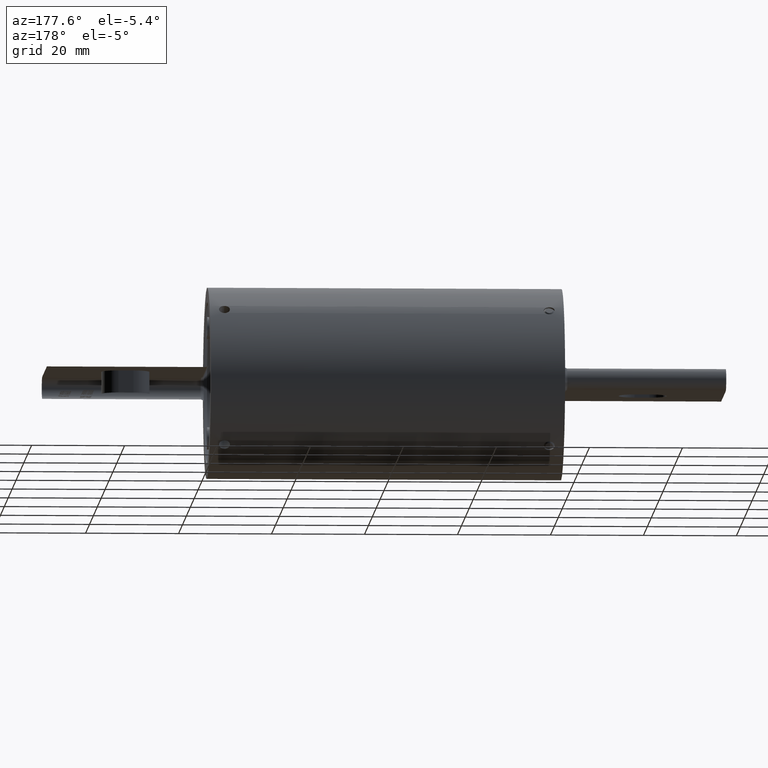
[diagram: clean part render]
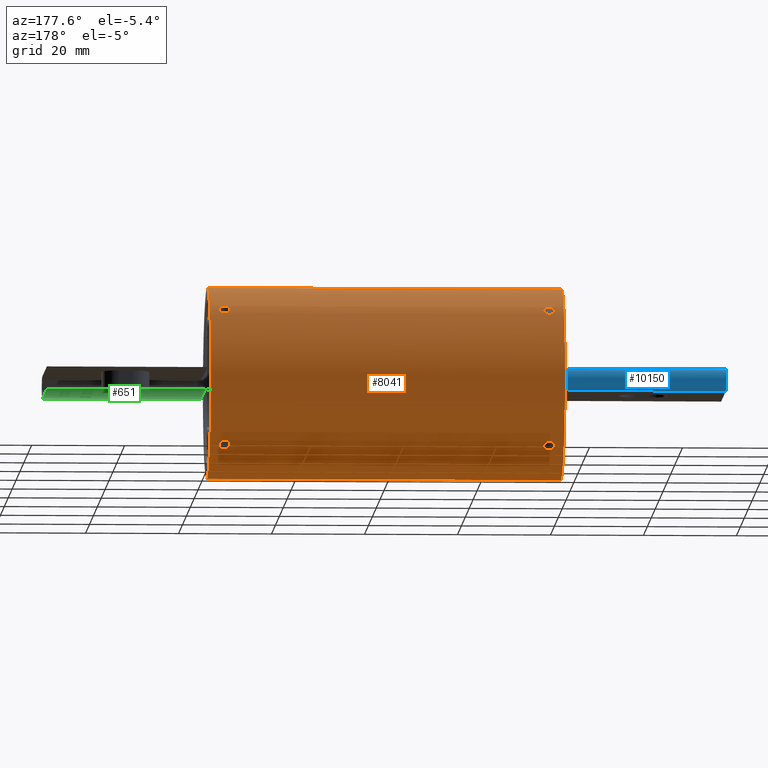
[diagram: same view with three faces highlighted in distinct colors, each labeled with its STEP entity id]
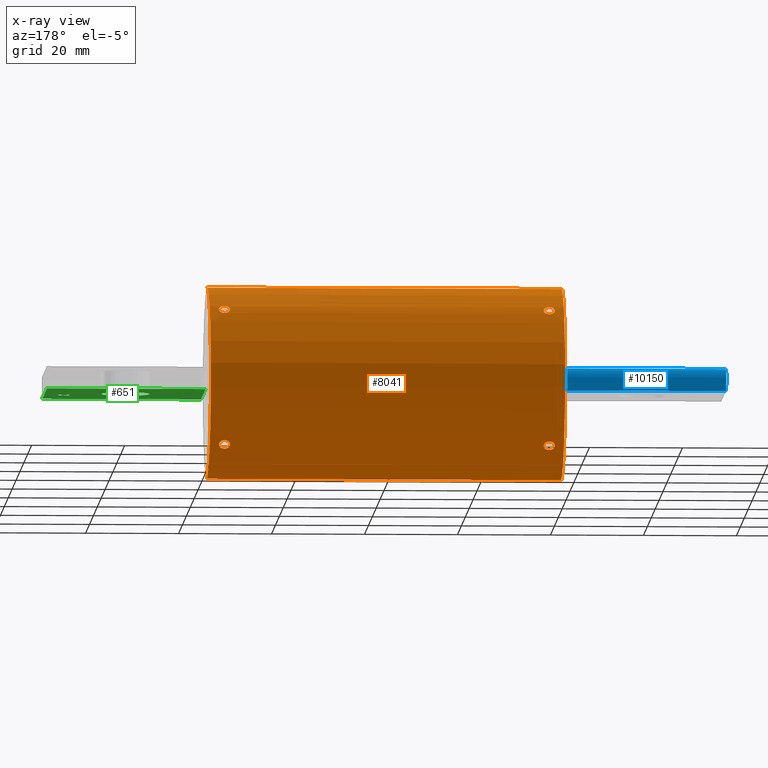
[diagram: x-ray of the same camera — body ghosted, the three highlighted faces saturated]
A machine part, auxiliary view with three faces highlighted in distinct colors.
The next image is the same camera in x-ray (body ghosted, the three faces saturated) — at least one of them is partly hidden behind the body in this view.
Their STEP definitions:

[orange] entity #8041 — the highlighted cylindrical surface (partial cylindrical patch) has radius 20.6375 mm, axis along (-1, -0, -0).
#150 = VERTEX_POINT ( 'NONE', #5687 ) ;
#240 = CARTESIAN_POINT ( 'NONE',  ( 1.334038366879631600, 0.5909793496865345400, -0.5576122985766067700 ) ) ;
#294 = VERTEX_POINT ( 'NONE', #4615 ) ;
#295 = DIRECTION ( 'NONE',  ( -1.000000000000000000, -0.0000000000000000000, -0.0000000000000000000 ) ) ;
#470 = VERTEX_POINT ( 'NONE', #3330 ) ;
#514 = CARTESIAN_POINT ( 'NONE',  ( 1.329332951784963700, 0.5658273840194194500, -0.5831190707390300200 ) ) ;
#623 = FACE_OUTER_BOUND ( 'NONE', #8137, .T. ) ;
#695 = CARTESIAN_POINT ( 'NONE',  ( 1.334023949155005200, 0.5576238351625177900, -0.5909688127341871100 ) ) ;
#725 = EDGE_LOOP ( 'NONE', ( #1001, #10065 ) ) ;
#731 = ORIENTED_EDGE ( 'NONE', *, *, #7513, .T. ) ;
#779 = B_SPLINE_CURVE_WITH_KNOTS ( 'NONE', 3,
 ( #5193, #5207, #5158, #5122, #5108, #5098, #5088, #5077, #5068, #5062, #5049, #5037, #5031, #5002, #4995, #4985, #4975, #4968 ),
 .UNSPECIFIED., .F., .F.,
 ( 4, 2, 2, 2, 2, 2, 2, 2, 4 ),
 ( 0.003722425619324115100, 0.004187729220031939100, 0.004653032820739764000, 0.005118336421447588000, 0.005583640022155412000, 0.006048943622863236900, 0.006514247223571060900, 0.006979550824278885800, 0.007444854424986709800 ),
 .UNSPECIFIED. ) ;
#801 = CARTESIAN_POINT ( 'NONE',  ( -1.375000000000000200, 0.5404217084749295400, -0.6067129692111735700 ) ) ;
#811 = EDGE_CURVE ( 'NONE', #294, #2682, #8096, .T. ) ;
#1001 = ORIENTED_EDGE ( 'NONE', *, *, #5377, .T. ) ;
#1039 = CARTESIAN_POINT ( 'NONE',  ( -1.412469314699299900, 0.5945509083305838800, -0.5537907447179437600 ) ) ;
#1053 = CARTESIAN_POINT ( 'NONE',  ( -1.421870789102742900, 0.5701775572551628400, 0.5788706186091341400 ) ) ;
#1182 = CARTESIAN_POINT ( 'NONE',  ( -1.500000000000000200, 9.950255243072245600E-017, -0.8125000000000000000 ) ) ;
#1293 = CARTESIAN_POINT ( 'NONE',  ( -1.403823156898221600, 0.6004152677518652700, -0.5474271438122460000 ) ) ;
#1322 = CARTESIAN_POINT ( 'NONE',  ( 1.375000000000000200, 0.6067129692111680200, -0.5404217084749356500 ) ) ;
#1342 = CARTESIAN_POINT ( 'NONE',  ( -1.500000000000000200, 0.0000000000000000000, 0.8125000000000000000 ) ) ;
#1345 = AXIS2_PLACEMENT_3D ( 'NONE', #4089, #3831, #4234 ) ;
#1392 = CARTESIAN_POINT ( 'NONE',  ( 1.381194365323907200, 0.6067129692111680200, -0.5404217084749356500 ) ) ;
#1394 = ORIENTED_EDGE ( 'NONE', *, *, #3242, .T. ) ;
#1433 = CARTESIAN_POINT ( 'NONE',  ( 1.329361585817783400, 0.5831804503088605700, -0.5657637578153628100 ) ) ;
#1543 = CARTESIAN_POINT ( 'NONE',  ( 1.387284325218666000, 0.6059002631434174900, -0.5413378669100369400 ) ) ;
#1579 = CARTESIAN_POINT ( 'NONE',  ( 1.398640609744779000, 0.6027466088351868300, -0.5448470799826807800 ) ) ;
#1607 = AXIS2_PLACEMENT_3D ( 'NONE', #8175, #8156, #8148 ) ;
#1618 = CARTESIAN_POINT ( 'NONE',  ( 1.346202517740073400, 0.5474038556743835400, -0.6004368981637510100 ) ) ;
#1691 = CARTESIAN_POINT ( 'NONE',  ( 1.403797482259927300, 0.6004368981637456800, -0.5474038556743897600 ) ) ;
#1722 = CARTESIAN_POINT ( 'NONE',  ( 1.412541206956776000, 0.5944979079309633500, -0.5538480724435140800 ) ) ;
#1760 = CARTESIAN_POINT ( 'NONE',  ( 1.415976050844995000, 0.5909688127341815600, -0.5576238351625235600 ) ) ;
#1761 = CARTESIAN_POINT ( 'NONE',  ( -1.375000000000000200, 0.6067129692111716800, 0.5404217084749316500 ) ) ;
#1769 = CARTESIAN_POINT ( 'NONE',  ( -1.381194354719381500, 0.6067129692111696800, 0.5404217084749337600 ) ) ;
#1775 = CARTESIAN_POINT ( 'NONE',  ( -1.387284325218666000, 0.6059002631434214900, 0.5413378669100326100 ) ) ;
#1787 = CARTESIAN_POINT ( 'NONE',  ( -1.398640609744779200, 0.6027466088351906000, 0.5448470799826766700 ) ) ;
#1802 = CARTESIAN_POINT ( 'NONE',  ( -1.403797482259927100, 0.6004368981637492300, 0.5474038556743856500 ) ) ;
#1810 = CARTESIAN_POINT ( 'NONE',  ( -1.412541206956775300, 0.5944979079309673500, 0.5538480724435097500 ) ) ;
#1818 = CARTESIAN_POINT ( 'NONE',  ( -1.415976050844995000, 0.5909688127341852200, 0.5576238351625199000 ) ) ;
#1829 = CARTESIAN_POINT ( 'NONE',  ( -1.420667048215037400, 0.5831190707390281300, 0.5658273840194213400 ) ) ;
#1848 = CARTESIAN_POINT ( 'NONE',  ( 1.420667048215037600, 0.5831190707390239100, -0.5658273840194257800 ) ) ;
#1850 = CARTESIAN_POINT ( 'NONE',  ( -1.421879188784005000, 0.5788254297754418200, 0.5702234314123376700 ) ) ;
#1857 = CARTESIAN_POINT ( 'NONE',  ( 1.421879188784005400, 0.5788254297754379400, -0.5702234314123417700 ) ) ;
#1860 = CARTESIAN_POINT ( 'NONE',  ( -1.420638414182216400, 0.5657637578153609200, 0.5831804503088623400 ) ) ;
#1871 = CARTESIAN_POINT ( 'NONE',  ( -1.415961633120369300, 0.5576122985766047700, 0.5909793496865364300 ) ) ;
#1888 = CARTESIAN_POINT ( 'NONE',  ( 1.421870789102742900, 0.5701775572551585100, -0.5788706186091383500 ) ) ;
#1890 = CARTESIAN_POINT ( 'NONE',  ( -1.412469314699299900, 0.5537907447179417600, 0.5945509083305857700 ) ) ;
#1898 = CARTESIAN_POINT ( 'NONE',  ( -1.403823156898221600, 0.5474271438122438900, 0.6004152677518670400 ) ) ;
#1917 = CARTESIAN_POINT ( 'NONE',  ( 1.420638414182216400, 0.5657637578153568200, -0.5831804503088665600 ) ) ;
#1920 = CARTESIAN_POINT ( 'NONE',  ( -1.398624374755408800, 0.5448404738885940200, 0.6027525682444275800 ) ) ;
#1927 = CARTESIAN_POINT ( 'NONE',  ( -1.387272538377428000, 0.5413358178877972800, 0.6059020818450379100 ) ) ;
#1951 = CARTESIAN_POINT ( 'NONE',  ( 1.415961633120369300, 0.5576122985766005500, -0.5909793496865404200 ) ) ;
#1966 = CARTESIAN_POINT ( 'NONE',  ( -1.375000000000000200, 0.5404217084749337600, 0.6067129692111696800 ) ) ;
#1978 = EDGE_CURVE ( 'NONE', #470, #3978, #3614, .T. ) ;
#2020 = CARTESIAN_POINT ( 'NONE',  ( 1.412469314699299900, 0.5537907447179375400, -0.5945509083305898800 ) ) ;
#2057 = CARTESIAN_POINT ( 'NONE',  ( 1.403823156898221300, 0.5474271438122397800, -0.6004152677518708200 ) ) ;
#2060 = CARTESIAN_POINT ( 'NONE',  ( 1.375000000000000200, 0.6067129692111716800, 0.5404217084749316500 ) ) ;
#2093 = CARTESIAN_POINT ( 'NONE',  ( 1.398624374755407900, 0.5448404738885895800, -0.6027525682444315700 ) ) ;
#2097 = CARTESIAN_POINT ( 'NONE',  ( -1.375000000000000200, 0.6067129692111716800, 0.5404217084749316500 ) ) ;
#2108 = CARTESIAN_POINT ( 'NONE',  ( -1.421870789102742900, 0.5788706186091322500, -0.5701775572551647200 ) ) ;
#2131 = CARTESIAN_POINT ( 'NONE',  ( 1.387272538377427800, 0.5413358178877932800, -0.6059020818450415700 ) ) ;
#2177 = CARTESIAN_POINT ( 'NONE',  ( 1.368805645280619000, 0.6067129692111696800, 0.5404217084749337600 ) ) ;
#2241 = CARTESIAN_POINT ( 'NONE',  ( -1.381194360021630800, 0.5404217084749336500, 0.6067129692111695700 ) ) ;
#2252 = CARTESIAN_POINT ( 'NONE',  ( 1.362715674781334700, 0.6059002631434214900, 0.5413378669100326100 ) ) ;
#2284 = CARTESIAN_POINT ( 'NONE',  ( 1.351359390255221400, 0.6027466088351906000, 0.5448470799826766700 ) ) ;
#2305 = CARTESIAN_POINT ( 'NONE',  ( 1.375000000000000200, 0.5404217084749295400, -0.6067129692111735700 ) ) ;
#2333 = ORIENTED_EDGE ( 'NONE', *, *, #811, .T. ) ;
#2364 = CARTESIAN_POINT ( 'NONE',  ( -1.362727461622572600, 0.5413358178877932800, -0.6059020818450415700 ) ) ;
#2395 = ORIENTED_EDGE ( 'NONE', *, *, #6529, .T. ) ;
#2429 = CARTESIAN_POINT ( 'NONE',  ( 1.381194360021609000, 0.5404217084749272100, -0.6067129692111754600 ) ) ;
#2493 = ORIENTED_EDGE ( 'NONE', *, *, #8595, .F. ) ;
#2529 = CARTESIAN_POINT ( 'NONE',  ( 1.346202517740073400, 0.6004368981637492300, 0.5474038556743856500 ) ) ;
#2538 = CARTESIAN_POINT ( 'NONE',  ( 1.368805639978369700, 0.6067129692111679100, -0.5404217084749356500 ) ) ;
#2561 = CARTESIAN_POINT ( 'NONE',  ( 1.337458793043225100, 0.5944979079309673500, 0.5538480724435097500 ) ) ;
#2587 = CARTESIAN_POINT ( 'NONE',  ( 1.334023949155005200, 0.5909688127341852200, 0.5576238351625199000 ) ) ;
#2682 = VERTEX_POINT ( 'NONE', #1182 ) ;
#2687 = CARTESIAN_POINT ( 'NONE',  ( 1.375000000000000200, 0.5404217084749295400, -0.6067129692111735700 ) ) ;
#2692 = CARTESIAN_POINT ( 'NONE',  ( 1.329332951784963700, 0.5831190707390281300, 0.5658273840194213400 ) ) ;
#2727 = CARTESIAN_POINT ( 'NONE',  ( 1.328120811215995200, 0.5788254297754418200, 0.5702234314123376700 ) ) ;
#2756 = FACE_BOUND ( 'NONE', #8609, .T. ) ;
#2785 = CARTESIAN_POINT ( 'NONE',  ( 1.328129210897257800, 0.5701775572551628400, 0.5788706186091341400 ) ) ;
#2791 = CARTESIAN_POINT ( 'NONE',  ( 1.329361585817783400, 0.5657637578153609200, 0.5831804503088623400 ) ) ;
#2821 = CARTESIAN_POINT ( 'NONE',  ( 1.334038366879631600, 0.5576122985766047700, 0.5909793496865364300 ) ) ;
#2857 = VERTEX_POINT ( 'NONE', #9832 ) ;
#2923 = CARTESIAN_POINT ( 'NONE',  ( 1.337530685300700500, 0.5537907447179417600, 0.5945509083305857700 ) ) ;
#2960 = CARTESIAN_POINT ( 'NONE',  ( 1.346176843101779100, 0.5474271438122438900, 0.6004152677518670400 ) ) ;
#2998 = CARTESIAN_POINT ( 'NONE',  ( 1.351375625244591400, 0.5448404738885940200, 0.6027525682444275800 ) ) ;
#3030 = CARTESIAN_POINT ( 'NONE',  ( 1.362727461622572900, 0.5413358178877972800, 0.6059020818450379100 ) ) ;
#3060 = CARTESIAN_POINT ( 'NONE',  ( 1.375000000000000200, 0.5404217084749337600, 0.6067129692111696800 ) ) ;
#3242 = EDGE_CURVE ( 'NONE', #3978, #470, #3929, .T. ) ;
#3300 = CARTESIAN_POINT ( 'NONE',  ( 1.368805639978369700, 0.5404217084749336500, 0.6067129692111695700 ) ) ;
#3306 = CARTESIAN_POINT ( 'NONE',  ( -1.375000000000000200, 0.6067129692111680200, -0.5404217084749356500 ) ) ;
#3328 = CARTESIAN_POINT ( 'NONE',  ( -1.387284325218666000, 0.5413378669100305000, -0.6059002631434232700 ) ) ;
#3330 = CARTESIAN_POINT ( 'NONE',  ( 1.375000000000000200, 0.6067129692111680200, -0.5404217084749356500 ) ) ;
#3334 = CARTESIAN_POINT ( 'NONE',  ( -1.368805639978391900, 0.5404217084749272100, -0.6067129692111754600 ) ) ;
#3614 = B_SPLINE_CURVE_WITH_KNOTS ( 'NONE', 3,
 ( #4443, #2538, #8676, #7207, #8569, #10165, #240, #1433, #7909, #3655, #514, #695, #10180, #1618, #10095, #9942, #10129, #9967 ),
 .UNSPECIFIED., .F., .F.,
 ( 4, 2, 2, 2, 2, 2, 2, 2, 4 ),
 ( 0.0000000000000000000, 0.0004653032024155148800, 0.0009306064048310297600, 0.001395909607246544600, 0.001861212809662059500, 0.002326516012077574400, 0.002791819214493089200, 0.003257122416908604300, 0.003722425619324119000 ),
 .UNSPECIFIED. ) ;
#3655 = CARTESIAN_POINT ( 'NONE',  ( 1.328120811215995200, 0.5702234314123356700, -0.5788254297754437100 ) ) ;
#3831 = DIRECTION ( 'NONE',  ( -1.000000000000000000, -0.0000000000000000000, -0.0000000000000000000 ) ) ;
#3929 = B_SPLINE_CURVE_WITH_KNOTS ( 'NONE', 3,
 ( #2305, #2429, #2131, #2093, #2057, #2020, #1951, #1917, #1888, #1857, #1848, #1760, #1722, #1691, #1579, #1543, #1392, #1322 ),
 .UNSPECIFIED., .F., .F.,
 ( 4, 2, 2, 2, 2, 2, 2, 2, 4 ),
 ( 0.003722425619324119000, 0.004187729220031945200, 0.004653032820739770900, 0.005118336421447596700, 0.005583640022155423300, 0.006048943622863249000, 0.006514247223571075600, 0.006979550824278901400, 0.007444854424986727100 ),
 .UNSPECIFIED. ) ;
#3978 = VERTEX_POINT ( 'NONE', #2687 ) ;
#4016 = ORIENTED_EDGE ( 'NONE', *, *, #7144, .T. ) ;
#4036 = EDGE_CURVE ( 'NONE', #7681, #6131, #7153, .T. ) ;
#4038 = ORIENTED_EDGE ( 'NONE', *, *, #1978, .T. ) ;
#4089 = CARTESIAN_POINT ( 'NONE',  ( 1.500000000000000200, 0.0000000000000000000, 0.0000000000000000000 ) ) ;
#4101 = CARTESIAN_POINT ( 'NONE',  ( -1.368805634676093700, 0.6067129692111680200, -0.5404217084749356500 ) ) ;
#4234 = DIRECTION ( 'NONE',  ( 0.0000000000000000000, 0.0000000000000000000, 1.000000000000000000 ) ) ;
#4443 = CARTESIAN_POINT ( 'NONE',  ( 1.375000000000000200, 0.6067129692111680200, -0.5404217084749356500 ) ) ;
#4529 = B_SPLINE_CURVE_WITH_KNOTS ( 'NONE', 3,
 ( #1966, #2241, #1927, #1920, #1898, #1890, #1871, #1860, #1053, #1850, #1829, #1818, #1810, #1802, #1787, #1775, #1769, #1761 ),
 .UNSPECIFIED., .F., .F.,
 ( 4, 2, 2, 2, 2, 2, 2, 2, 4 ),
 ( 0.0000000000000000000, 0.0004653032024155143900, 0.0009306064048310287800, 0.001395909607246543300, 0.001861212809662057600, 0.002326516012077571800, 0.002791819214493086600, 0.003257122416908600800, 0.003722425619324115100 ),
 .UNSPECIFIED. ) ;
#4589 = ORIENTED_EDGE ( 'NONE', *, *, #8882, .T. ) ;
#4615 = CARTESIAN_POINT ( 'NONE',  ( 1.500000000000000200, 9.950255243072245600E-017, -0.8125000000000000000 ) ) ;
#4740 = CARTESIAN_POINT ( 'NONE',  ( -1.415976050844995000, 0.5576238351625177900, -0.5909688127341871100 ) ) ;
#4763 = VERTEX_POINT ( 'NONE', #8110 ) ;
#4807 = CIRCLE ( 'NONE', #1607, 0.8125000000000000000 ) ;
#4853 = CARTESIAN_POINT ( 'NONE',  ( -1.381194354719381500, 0.5404217084749317600, -0.6067129692111715700 ) ) ;
#4933 = FACE_BOUND ( 'NONE', #725, .T. ) ;
#4958 = VERTEX_POINT ( 'NONE', #1342 ) ;
#4968 = CARTESIAN_POINT ( 'NONE',  ( 1.375000000000000200, 0.5404217084749337600, 0.6067129692111696800 ) ) ;
#4975 = CARTESIAN_POINT ( 'NONE',  ( 1.381194365323907200, 0.5404217084749337600, 0.6067129692111696800 ) ) ;
#4985 = CARTESIAN_POINT ( 'NONE',  ( 1.387284325218666000, 0.5413378669100349400, 0.6059002631434194900 ) ) ;
#4995 = CARTESIAN_POINT ( 'NONE',  ( 1.398640609744779000, 0.5448470799826786700, 0.6027466088351887100 ) ) ;
#5002 = CARTESIAN_POINT ( 'NONE',  ( 1.403797482259926400, 0.5474038556743875400, 0.6004368981637473500 ) ) ;
#5031 = CARTESIAN_POINT ( 'NONE',  ( 1.412541206956776000, 0.5538480724435120800, 0.5944979079309652400 ) ) ;
#5037 = CARTESIAN_POINT ( 'NONE',  ( 1.415976050844994600, 0.5576238351625217900, 0.5909688127341834500 ) ) ;
#5049 = CARTESIAN_POINT ( 'NONE',  ( 1.420667048215037600, 0.5658273840194237800, 0.5831190707390258000 ) ) ;
#5062 = CARTESIAN_POINT ( 'NONE',  ( 1.421879188784005400, 0.5702234314123397800, 0.5788254297754397100 ) ) ;
#5068 = CARTESIAN_POINT ( 'NONE',  ( 1.421870789102742900, 0.5788706186091364700, 0.5701775572551603900 ) ) ;
#5077 = CARTESIAN_POINT ( 'NONE',  ( 1.420638414182216400, 0.5831804503088645600, 0.5657637578153589300 ) ) ;
#5088 = CARTESIAN_POINT ( 'NONE',  ( 1.415961633120369300, 0.5909793496865385400, 0.5576122985766024400 ) ) ;
#5098 = CARTESIAN_POINT ( 'NONE',  ( 1.412469314699299900, 0.5945509083305879900, 0.5537907447179395400 ) ) ;
#5108 = CARTESIAN_POINT ( 'NONE',  ( 1.403823156898221600, 0.6004152677518690400, 0.5474271438122416700 ) ) ;
#5122 = CARTESIAN_POINT ( 'NONE',  ( 1.398624374755407500, 0.6027525682444299100, 0.5448404738885914700 ) ) ;
#5158 = CARTESIAN_POINT ( 'NONE',  ( 1.387272538377428000, 0.6059020818450398000, 0.5413358178877950600 ) ) ;
#5163 = FACE_BOUND ( 'NONE', #7767, .T. ) ;
#5193 = CARTESIAN_POINT ( 'NONE',  ( 1.375000000000000200, 0.6067129692111716800, 0.5404217084749316500 ) ) ;
#5207 = CARTESIAN_POINT ( 'NONE',  ( 1.381194360021609000, 0.6067129692111734600, 0.5404217084749293200 ) ) ;
#5377 = EDGE_CURVE ( 'NONE', #9904, #2857, #9291, .T. ) ;
#5438 = DIRECTION ( 'NONE',  ( 0.0000000000000000000, 0.0000000000000000000, 1.000000000000000000 ) ) ;
#5476 = DIRECTION ( 'NONE',  ( -1.000000000000000000, -0.0000000000000000000, -0.0000000000000000000 ) ) ;
#5582 = CARTESIAN_POINT ( 'NONE',  ( 1.500000000000000200, 0.0000000000000000000, 0.0000000000000000000 ) ) ;
#5687 = CARTESIAN_POINT ( 'NONE',  ( -1.375000000000000200, 0.5404217084749337600, 0.6067129692111696800 ) ) ;
#5949 = CYLINDRICAL_SURFACE ( 'NONE', #1345, 0.8125000000000000000 ) ;
#5981 = CARTESIAN_POINT ( 'NONE',  ( -1.351375625244592300, 0.5448404738885895800, -0.6027525682444315700 ) ) ;
#6030 = AXIS2_PLACEMENT_3D ( 'NONE', #5582, #5476, #5438 ) ;
#6052 = CARTESIAN_POINT ( 'NONE',  ( -1.398640609744779200, 0.5448470799826746800, -0.6027466088351923800 ) ) ;
#6085 = CARTESIAN_POINT ( 'NONE',  ( -1.375000000000000200, 0.6067129692111680200, -0.5404217084749356500 ) ) ;
#6131 = VERTEX_POINT ( 'NONE', #6515 ) ;
#6146 = CARTESIAN_POINT ( 'NONE',  ( 1.500000000000000200, 0.0000000000000000000, 0.8125000000000000000 ) ) ;
#6163 = DIRECTION ( 'NONE',  ( -1.000000000000000000, -0.0000000000000000000, -0.0000000000000000000 ) ) ;
#6267 = VERTEX_POINT ( 'NONE', #2097 ) ;
#6500 = CARTESIAN_POINT ( 'NONE',  ( -1.375000000000000200, 0.5404217084749295400, -0.6067129692111735700 ) ) ;
#6515 = CARTESIAN_POINT ( 'NONE',  ( -1.375000000000000200, 0.6067129692111680200, -0.5404217084749356500 ) ) ;
#6527 = CARTESIAN_POINT ( 'NONE',  ( -1.346176843101779300, 0.5474271438122397800, -0.6004152677518708200 ) ) ;
#6529 = EDGE_CURVE ( 'NONE', #6131, #7681, #9273, .T. ) ;
#7094 = CARTESIAN_POINT ( 'NONE',  ( -1.337530685300700500, 0.5537907447179375400, -0.5945509083305898800 ) ) ;
#7144 = EDGE_CURVE ( 'NONE', #6267, #150, #10018, .T. ) ;
#7153 = B_SPLINE_CURVE_WITH_KNOTS ( 'NONE', 3,
 ( #8234, #3334, #2364, #5981, #6527, #7094, #7161, #7360, #7406, #7822, #8082, #8625, #8670, #9014, #9237, #9528, #4101, #3306 ),
 .UNSPECIFIED., .F., .F.,
 ( 4, 2, 2, 2, 2, 2, 2, 2, 4 ),
 ( 0.003722425619324119000, 0.004187729220031945200, 0.004653032820739770900, 0.005118336421447596700, 0.005583640022155423300, 0.006048943622863249000, 0.006514247223571075600, 0.006979550824278901400, 0.007444854424986727100 ),
 .UNSPECIFIED. ) ;
#7161 = CARTESIAN_POINT ( 'NONE',  ( -1.334038366879631600, 0.5576122985766005500, -0.5909793496865404200 ) ) ;
#7207 = CARTESIAN_POINT ( 'NONE',  ( 1.351375625244591400, 0.6027525682444256900, -0.5448404738885959100 ) ) ;
#7210 = ORIENTED_EDGE ( 'NONE', *, *, #8384, .T. ) ;
#7360 = CARTESIAN_POINT ( 'NONE',  ( -1.329361585817783400, 0.5657637578153568200, -0.5831804503088665600 ) ) ;
#7406 = CARTESIAN_POINT ( 'NONE',  ( -1.328129210897257800, 0.5701775572551585100, -0.5788706186091383500 ) ) ;
#7513 = EDGE_CURVE ( 'NONE', #4763, #294, #9493, .T. ) ;
#7654 = CARTESIAN_POINT ( 'NONE',  ( -1.403797482259927100, 0.5474038556743835400, -0.6004368981637510100 ) ) ;
#7681 = VERTEX_POINT ( 'NONE', #6500 ) ;
#7767 = EDGE_LOOP ( 'NONE', ( #4589, #4016 ) ) ;
#7785 = CARTESIAN_POINT ( 'NONE',  ( -1.412541206956775300, 0.5538480724435077600, -0.5944979079309691300 ) ) ;
#7822 = CARTESIAN_POINT ( 'NONE',  ( -1.328120811215995000, 0.5788254297754379400, -0.5702234314123417700 ) ) ;
#7909 = CARTESIAN_POINT ( 'NONE',  ( 1.328129210897257800, 0.5788706186091322500, -0.5701775572551647200 ) ) ;
#7974 = CARTESIAN_POINT ( 'NONE',  ( -1.398624374755408800, 0.6027525682444256900, -0.5448404738885959100 ) ) ;
#7998 = CARTESIAN_POINT ( 'NONE',  ( -1.387272538377428000, 0.6059020818450360200, -0.5413358178877991600 ) ) ;
#8024 = CARTESIAN_POINT ( 'NONE',  ( -1.375000000000000200, 0.5404217084749337600, 0.6067129692111696800 ) ) ;
#8041 = ADVANCED_FACE ( 'NONE', ( #5163, #4933, #2756, #8996, #623 ), #5949, .T. ) ;
#8047 = CARTESIAN_POINT ( 'NONE',  ( -1.368805634676093700, 0.5404217084749337600, 0.6067129692111696800 ) ) ;
#8082 = CARTESIAN_POINT ( 'NONE',  ( -1.329332951784962800, 0.5831190707390239100, -0.5658273840194257800 ) ) ;
#8096 = LINE ( 'NONE', #9479, #9888 ) ;
#8110 = CARTESIAN_POINT ( 'NONE',  ( 1.500000000000000200, 0.0000000000000000000, 0.8125000000000000000 ) ) ;
#8137 = EDGE_LOOP ( 'NONE', ( #731, #2333, #7210, #2493 ) ) ;
#8148 = DIRECTION ( 'NONE',  ( 0.0000000000000000000, 0.0000000000000000000, 1.000000000000000000 ) ) ;
#8151 = CARTESIAN_POINT ( 'NONE',  ( -1.420667048215037400, 0.5658273840194194500, -0.5831190707390300200 ) ) ;
#8156 = DIRECTION ( 'NONE',  ( 1.000000000000000000, 0.0000000000000000000, 0.0000000000000000000 ) ) ;
#8175 = CARTESIAN_POINT ( 'NONE',  ( -1.500000000000000200, 0.0000000000000000000, 0.0000000000000000000 ) ) ;
#8234 = CARTESIAN_POINT ( 'NONE',  ( -1.375000000000000200, 0.5404217084749295400, -0.6067129692111735700 ) ) ;
#8244 = CARTESIAN_POINT ( 'NONE',  ( -1.421879188784005000, 0.5702234314123356700, -0.5788254297754437100 ) ) ;
#8379 = CARTESIAN_POINT ( 'NONE',  ( 1.375000000000000200, 0.5404217084749337600, 0.6067129692111696800 ) ) ;
#8384 = EDGE_CURVE ( 'NONE', #2682, #4958, #4807, .T. ) ;
#8421 = CARTESIAN_POINT ( 'NONE',  ( -1.362715674781334500, 0.5413378669100349400, 0.6059002631434194900 ) ) ;
#8530 = CARTESIAN_POINT ( 'NONE',  ( -1.351359390255221400, 0.5448470799826786700, 0.6027466088351887100 ) ) ;
#8569 = CARTESIAN_POINT ( 'NONE',  ( 1.346176843101779100, 0.6004152677518652700, -0.5474271438122460000 ) ) ;
#8595 = EDGE_CURVE ( 'NONE', #4763, #4958, #8886, .T. ) ;
#8596 = CARTESIAN_POINT ( 'NONE',  ( -1.346202517740074000, 0.5474038556743875400, 0.6004368981637473500 ) ) ;
#8609 = EDGE_LOOP ( 'NONE', ( #2395, #9485 ) ) ;
#8625 = CARTESIAN_POINT ( 'NONE',  ( -1.334023949155005200, 0.5909688127341815600, -0.5576238351625235600 ) ) ;
#8635 = CARTESIAN_POINT ( 'NONE',  ( -1.337458793043224500, 0.5538480724435120800, 0.5944979079309652400 ) ) ;
#8666 = EDGE_CURVE ( 'NONE', #2857, #9904, #779, .T. ) ;
#8670 = CARTESIAN_POINT ( 'NONE',  ( -1.337458793043224500, 0.5944979079309633500, -0.5538480724435140800 ) ) ;
#8674 = CARTESIAN_POINT ( 'NONE',  ( -1.334023949155005200, 0.5576238351625217900, 0.5909688127341834500 ) ) ;
#8676 = CARTESIAN_POINT ( 'NONE',  ( 1.362727461622572900, 0.6059020818450360200, -0.5413358178877991600 ) ) ;
#8702 = CARTESIAN_POINT ( 'NONE',  ( -1.329332951784962800, 0.5658273840194237800, 0.5831190707390258000 ) ) ;
#8766 = CARTESIAN_POINT ( 'NONE',  ( -1.415961633120369300, 0.5909793496865345400, -0.5576122985766067700 ) ) ;
#8796 = CARTESIAN_POINT ( 'NONE',  ( -1.328120811215995000, 0.5702234314123397800, 0.5788254297754397100 ) ) ;
#8882 = EDGE_CURVE ( 'NONE', #150, #6267, #4529, .T. ) ;
#8886 = LINE ( 'NONE', #6146, #9101 ) ;
#8996 = FACE_BOUND ( 'NONE', #9137, .T. ) ;
#9014 = CARTESIAN_POINT ( 'NONE',  ( -1.346202517740074000, 0.6004368981637456800, -0.5474038556743897600 ) ) ;
#9101 = VECTOR ( 'NONE', #6163, 39.37007874015748100 ) ;
#9137 = EDGE_LOOP ( 'NONE', ( #4038, #1394 ) ) ;
#9237 = CARTESIAN_POINT ( 'NONE',  ( -1.351359390255221400, 0.6027466088351868300, -0.5448470799826807800 ) ) ;
#9273 = B_SPLINE_CURVE_WITH_KNOTS ( 'NONE', 3,
 ( #6085, #9645, #7998, #7974, #1293, #1039, #8766, #9345, #2108, #8244, #8151, #4740, #7785, #7654, #6052, #3328, #4853, #801 ),
 .UNSPECIFIED., .F., .F.,
 ( 4, 2, 2, 2, 2, 2, 2, 2, 4 ),
 ( 0.0000000000000000000, 0.0004653032024155148800, 0.0009306064048310297600, 0.001395909607246544600, 0.001861212809662059500, 0.002326516012077574400, 0.002791819214493089200, 0.003257122416908604300, 0.003722425619324119000 ),
 .UNSPECIFIED. ) ;
#9283 = CARTESIAN_POINT ( 'NONE',  ( -1.328129210897257800, 0.5788706186091364700, 0.5701775572551603900 ) ) ;
#9291 = B_SPLINE_CURVE_WITH_KNOTS ( 'NONE', 3,
 ( #3060, #3300, #3030, #2998, #2960, #2923, #2821, #2791, #2785, #2727, #2692, #2587, #2561, #2529, #2284, #2252, #2177, #2060 ),
 .UNSPECIFIED., .F., .F.,
 ( 4, 2, 2, 2, 2, 2, 2, 2, 4 ),
 ( 0.0000000000000000000, 0.0004653032024155143900, 0.0009306064048310287800, 0.001395909607246543300, 0.001861212809662057600, 0.002326516012077571800, 0.002791819214493086600, 0.003257122416908600800, 0.003722425619324115100 ),
 .UNSPECIFIED. ) ;
#9317 = CARTESIAN_POINT ( 'NONE',  ( -1.329361585817783400, 0.5831804503088645600, 0.5657637578153589300 ) ) ;
#9345 = CARTESIAN_POINT ( 'NONE',  ( -1.420638414182216400, 0.5831804503088605700, -0.5657637578153628100 ) ) ;
#9357 = CARTESIAN_POINT ( 'NONE',  ( -1.334038366879631600, 0.5909793496865385400, 0.5576122985766024400 ) ) ;
#9389 = CARTESIAN_POINT ( 'NONE',  ( -1.337530685300700500, 0.5945509083305879900, 0.5537907447179395400 ) ) ;
#9414 = CARTESIAN_POINT ( 'NONE',  ( -1.346176843101779300, 0.6004152677518690400, 0.5474271438122416700 ) ) ;
#9479 = CARTESIAN_POINT ( 'NONE',  ( 1.500000000000000200, 9.950255243072245600E-017, -0.8125000000000000000 ) ) ;
#9485 = ORIENTED_EDGE ( 'NONE', *, *, #4036, .T. ) ;
#9493 = CIRCLE ( 'NONE', #6030, 0.8125000000000000000 ) ;
#9495 = CARTESIAN_POINT ( 'NONE',  ( -1.351375625244592100, 0.6027525682444299100, 0.5448404738885914700 ) ) ;
#9528 = CARTESIAN_POINT ( 'NONE',  ( -1.362715674781334500, 0.6059002631434174900, -0.5413378669100369400 ) ) ;
#9532 = CARTESIAN_POINT ( 'NONE',  ( -1.362727461622573100, 0.6059020818450398000, 0.5413358178877950600 ) ) ;
#9645 = CARTESIAN_POINT ( 'NONE',  ( -1.381194360021630800, 0.6067129692111679100, -0.5404217084749356500 ) ) ;
#9832 = CARTESIAN_POINT ( 'NONE',  ( 1.375000000000000200, 0.6067129692111716800, 0.5404217084749316500 ) ) ;
#9888 = VECTOR ( 'NONE', #295, 39.37007874015748100 ) ;
#9904 = VERTEX_POINT ( 'NONE', #8379 ) ;
#9942 = CARTESIAN_POINT ( 'NONE',  ( 1.362715674781334700, 0.5413378669100305000, -0.6059002631434232700 ) ) ;
#9958 = CARTESIAN_POINT ( 'NONE',  ( -1.368805639978391900, 0.6067129692111734600, 0.5404217084749293200 ) ) ;
#9967 = CARTESIAN_POINT ( 'NONE',  ( 1.375000000000000200, 0.5404217084749295400, -0.6067129692111735700 ) ) ;
#10018 = B_SPLINE_CURVE_WITH_KNOTS ( 'NONE', 3,
 ( #10062, #9958, #9532, #9495, #9414, #9389, #9357, #9317, #9283, #8796, #8702, #8674, #8635, #8596, #8530, #8421, #8047, #8024 ),
 .UNSPECIFIED., .F., .F.,
 ( 4, 2, 2, 2, 2, 2, 2, 2, 4 ),
 ( 0.003722425619324115100, 0.004187729220031939100, 0.004653032820739764000, 0.005118336421447588000, 0.005583640022155412000, 0.006048943622863236900, 0.006514247223571060900, 0.006979550824278885800, 0.007444854424986709800 ),
 .UNSPECIFIED. ) ;
#10062 = CARTESIAN_POINT ( 'NONE',  ( -1.375000000000000200, 0.6067129692111716800, 0.5404217084749316500 ) ) ;
#10065 = ORIENTED_EDGE ( 'NONE', *, *, #8666, .T. ) ;
#10095 = CARTESIAN_POINT ( 'NONE',  ( 1.351359390255221400, 0.5448470799826746800, -0.6027466088351923800 ) ) ;
#10129 = CARTESIAN_POINT ( 'NONE',  ( 1.368805645280619000, 0.5404217084749317600, -0.6067129692111715700 ) ) ;
#10165 = CARTESIAN_POINT ( 'NONE',  ( 1.337530685300700500, 0.5945509083305838800, -0.5537907447179437600 ) ) ;
#10180 = CARTESIAN_POINT ( 'NONE',  ( 1.337458793043225100, 0.5538480724435077600, -0.5944979079309691300 ) ) ;

[blue] entity #10150 — the highlighted cylindrical surface (edge-blend (fillet) strip) has radius 2.3813 mm, axis along (1, 0, -0).
#196 = EDGE_CURVE ( 'NONE', #4780, #1719, #9426, .T. ) ;
#592 = CARTESIAN_POINT ( 'NONE',  ( -2.875000000000002700, 0.4687500000000011700, 0.09375000000000041600 ) ) ;
#689 = DIRECTION ( 'NONE',  ( 0.0000000000000000000, 0.0000000000000000000, -1.000000000000000000 ) ) ;
#752 = DIRECTION ( 'NONE',  ( 1.000000000000000000, 7.377009400124987100E-018, -1.390552025336125600E-016 ) ) ;
#756 = EDGE_CURVE ( 'NONE', #7905, #2748, #9289, .T. ) ;
#887 = CARTESIAN_POINT ( 'NONE',  ( -2.875000000000002700, 0.4687500000000011700, 3.670390419149393600E-016 ) ) ;
#903 = CARTESIAN_POINT ( 'NONE',  ( -1.530000000000000000, 0.4687500000000012800, -0.09374999999999958400 ) ) ;
#1173 = DIRECTION ( 'NONE',  ( 1.000000000000000000, 7.377009400124987100E-018, -1.390552025336125600E-016 ) ) ;
#1218 = ORIENTED_EDGE ( 'NONE', *, *, #3592, .T. ) ;
#1719 = VERTEX_POINT ( 'NONE', #903 ) ;
#1903 = LINE ( 'NONE', #9492, #5975 ) ;
#2041 = CARTESIAN_POINT ( 'NONE',  ( -2.875000000000002700, 0.4687500000000011700, -0.09374999999999957000 ) ) ;
#2748 = VERTEX_POINT ( 'NONE', #592 ) ;
#3592 = EDGE_CURVE ( 'NONE', #2748, #4780, #1903, .T. ) ;
#3660 = ORIENTED_EDGE ( 'NONE', *, *, #5107, .T. ) ;
#4144 = VECTOR ( 'NONE', #9746, 39.37007874015748100 ) ;
#4459 = AXIS2_PLACEMENT_3D ( 'NONE', #5285, #5251, #5022 ) ;
#4780 = VERTEX_POINT ( 'NONE', #6324 ) ;
#5022 = DIRECTION ( 'NONE',  ( 0.0000000000000000000, 0.0000000000000000000, -1.000000000000000000 ) ) ;
#5107 = EDGE_CURVE ( 'NONE', #1719, #7905, #8256, .T. ) ;
#5137 = AXIS2_PLACEMENT_3D ( 'NONE', #887, #1173, #6859 ) ;
#5251 = DIRECTION ( 'NONE',  ( -1.000000000000000000, -7.377009400124987100E-018, 1.390552025336125600E-016 ) ) ;
#5285 = CARTESIAN_POINT ( 'NONE',  ( -1.530000000000000000, 0.4687500000000011700, 1.800097945072301300E-016 ) ) ;
#5975 = VECTOR ( 'NONE', #9411, 39.37007874015748100 ) ;
#6250 = CYLINDRICAL_SURFACE ( 'NONE', #5137, 0.09375000000000019400 ) ;
#6324 = CARTESIAN_POINT ( 'NONE',  ( -1.530000000000000000, 0.4687500000000011700, 0.09375000000000041600 ) ) ;
#6619 = EDGE_LOOP ( 'NONE', ( #1218, #9520, #3660, #8509 ) ) ;
#6859 = DIRECTION ( 'NONE',  ( 0.0000000000000000000, 0.0000000000000000000, -1.000000000000000000 ) ) ;
#7669 = AXIS2_PLACEMENT_3D ( 'NONE', #7993, #752, #689 ) ;
#7905 = VERTEX_POINT ( 'NONE', #2041 ) ;
#7993 = CARTESIAN_POINT ( 'NONE',  ( -2.875000000000002700, 0.4687500000000011700, 3.670390419149393600E-016 ) ) ;
#8256 = LINE ( 'NONE', #9842, #4144 ) ;
#8509 = ORIENTED_EDGE ( 'NONE', *, *, #756, .T. ) ;
#9289 = CIRCLE ( 'NONE', #7669, 0.09375000000000019400 ) ;
#9411 = DIRECTION ( 'NONE',  ( 1.000000000000000000, -3.331843783688782000E-032, 1.738190031670160000E-016 ) ) ;
#9426 = CIRCLE ( 'NONE', #4459, 0.09375000000000019400 ) ;
#9492 = CARTESIAN_POINT ( 'NONE',  ( -2.875000000000002700, 0.4687500000000011700, 0.09375000000000041600 ) ) ;
#9520 = ORIENTED_EDGE ( 'NONE', *, *, #196, .T. ) ;
#9696 = FACE_OUTER_BOUND ( 'NONE', #6619, .T. ) ;
#9746 = DIRECTION ( 'NONE',  ( -1.000000000000000000, 3.964973243772160900E-032, -1.738190031670160000E-016 ) ) ;
#9842 = CARTESIAN_POINT ( 'NONE',  ( -2.875000000000002700, 0.4687500000000011700, -0.09374999999999957000 ) ) ;
#10150 = ADVANCED_FACE ( 'NONE', ( #9696 ), #6250, .T. ) ;

[green] entity #651 — the highlighted planar face has unit normal (0, 0, 1).
#9 = EDGE_CURVE ( 'NONE', #5381, #9582, #3848, .T. ) ;
#131 = CARTESIAN_POINT ( 'NONE',  ( 2.750000000000000400, -0.1072704253281083600, -0.09374505627301442400 ) ) ;
#135 = CARTESIAN_POINT ( 'NONE',  ( 2.678908653846154400, -0.1173864109050314500, -0.09375005627297967900 ) ) ;
#154 = CARTESIAN_POINT ( 'NONE',  ( 2.875000000000000400, -0.4687499926358005300, -0.09375005627297967900 ) ) ;
#157 = ORIENTED_EDGE ( 'NONE', *, *, #2928, .T. ) ;
#218 = ORIENTED_EDGE ( 'NONE', *, *, #8090, .T. ) ;
#228 = ORIENTED_EDGE ( 'NONE', *, *, #3067, .T. ) ;
#305 = CARTESIAN_POINT ( 'NONE',  ( 2.689006009615384900, -0.1331285984050314400, -0.09374505627296031400 ) ) ;
#306 = CARTESIAN_POINT ( 'NONE',  ( 2.689862980769230900, -0.1249314830204160400, -0.09374505627296737800 ) ) ;
#378 = VECTOR ( 'NONE', #6893, 39.37007874015748100 ) ;
#536 = CARTESIAN_POINT ( 'NONE',  ( 2.750000000000000000, -0.1505660984050314900, -0.09374505627297950700 ) ) ;
#555 = CARTESIAN_POINT ( 'NONE',  ( 2.707039663461538600, -0.1367614109050314400, -0.09374505627296721200 ) ) ;
#651 = ADVANCED_FACE ( 'NONE', ( #5363, #1298, #7636 ), #1586, .T. ) ;
#733 = CARTESIAN_POINT ( 'NONE',  ( 2.690359775641026000, -0.1482187426358006800, -0.09375005627297967900 ) ) ;
#755 = VERTEX_POINT ( 'NONE', #902 ) ;
#790 = CARTESIAN_POINT ( 'NONE',  ( 2.721953047981212400, -0.1314055959232029400, -0.09375005627297970700 ) ) ;
#816 = LINE ( 'NONE', #154, #4862 ) ;
#822 = EDGE_CURVE ( 'NONE', #7479, #2606, #816, .T. ) ;
#902 = CARTESIAN_POINT ( 'NONE',  ( 2.657000000000000500, -0.08647955994349296200, -0.09374505627298049300 ) ) ;
#1061 = CARTESIAN_POINT ( 'NONE',  ( 2.742150641025641500, -0.1451572442383648200, -0.09375005627297967900 ) ) ;
#1215 = ORIENTED_EDGE ( 'NONE', *, *, #5460, .T. ) ;
#1219 = B_SPLINE_CURVE_WITH_KNOTS ( 'NONE', 3,
 ( #2568, #2417, #1569, #1532 ),
 .UNSPECIFIED., .F., .F.,
 ( 4, 4 ),
 ( 0.0000000000000000000, 1.000000000000000000 ),
 .UNSPECIFIED. ) ;
#1298 = FACE_OUTER_BOUND ( 'NONE', #8247, .T. ) ;
#1333 = VERTEX_POINT ( 'NONE', #7372 ) ;
#1343 = B_SPLINE_CURVE_WITH_KNOTS ( 'NONE', 3,
 ( #6608, #6304, #6211, #6110 ),
 .UNSPECIFIED., .F., .F.,
 ( 4, 4 ),
 ( 0.0000000000000000000, 1.000000000000000000 ),
 .UNSPECIFIED. ) ;
#1352 = VERTEX_POINT ( 'NONE', #7261 ) ;
#1362 = CARTESIAN_POINT ( 'NONE',  ( 2.721726906734795100, -0.1312699171668861600, -0.09375005627297965100 ) ) ;
#1455 = DIRECTION ( 'NONE',  ( 1.000000000000000000, 0.0000000000000000000, -3.476380063340317700E-017 ) ) ;
#1468 = EDGE_CURVE ( 'NONE', #7655, #8019, #6350, .T. ) ;
#1480 = DIRECTION ( 'NONE',  ( 3.476380063340317700E-017, 1.994249035374912900E-017, 1.000000000000000000 ) ) ;
#1510 = CARTESIAN_POINT ( 'NONE',  ( 2.721114196101759800, -0.1309081797437499100, -0.09375005627297967900 ) ) ;
#1532 = CARTESIAN_POINT ( 'NONE',  ( 2.657000000000000500, -0.08647955994349296200, -0.09374505627298049300 ) ) ;
#1548 = EDGE_CURVE ( 'NONE', #755, #4071, #4736, .T. ) ;
#1569 = CARTESIAN_POINT ( 'NONE',  ( 2.657000000000000500, -0.09175179552041604100, -0.09375005627297967900 ) ) ;
#1586 = PLANE ( 'NONE',  #9943 ) ;
#1654 = CARTESIAN_POINT ( 'NONE',  ( 2.750000000000000000, -0.1505660984050314900, -0.09374505627297950700 ) ) ;
#1656 = ORIENTED_EDGE ( 'NONE', *, *, #6621, .T. ) ;
#1737 = B_SPLINE_CURVE_WITH_KNOTS ( 'NONE', 3,
 ( #8034, #8092, #7869, #7802 ),
 .UNSPECIFIED., .F., .F.,
 ( 4, 4 ),
 ( 0.0000000000000000000, 1.000000000000000000 ),
 .UNSPECIFIED. ) ;
#1779 = VERTEX_POINT ( 'NONE', #3047 ) ;
#1835 = ORIENTED_EDGE ( 'NONE', *, *, #822, .T. ) ;
#1884 = CARTESIAN_POINT ( 'NONE',  ( 2.875000000000000400, -0.4687499926358005300, -0.09375005627297967900 ) ) ;
#2025 = EDGE_LOOP ( 'NONE', ( #8054, #1656, #7637, #157, #228, #1215, #5248, #6788, #3303, #7907, #6409, #9927, #8740, #3986, #4151, #6728 ) ) ;
#2027 = CARTESIAN_POINT ( 'NONE',  ( 2.253000000000000100, -0.1409999926358004600, -0.09375005627297969300 ) ) ;
#2104 = CARTESIAN_POINT ( 'NONE',  ( 2.667954326923077400, -0.1098413387896468000, -0.09375005627297967900 ) ) ;
#2298 = CARTESIAN_POINT ( 'NONE',  ( 2.717584134615385900, -0.1295144157127237100, -0.09374505627297880000 ) ) ;
#2307 = CARTESIAN_POINT ( 'NONE',  ( 2.695396033653846500, -0.1287505935973391200, -0.09374505627296733600 ) ) ;
#2344 = CARTESIAN_POINT ( 'NONE',  ( 2.706890625000000700, -0.1208515551358006600, -0.09374505627297996500 ) ) ;
#2406 = LINE ( 'NONE', #4875, #4313 ) ;
#2417 = CARTESIAN_POINT ( 'NONE',  ( 2.657000000000000500, -0.09702403109733912000, -0.09375005627297967900 ) ) ;
#2437 = VERTEX_POINT ( 'NONE', #4841 ) ;
#2448 = CARTESIAN_POINT ( 'NONE',  ( 2.734288862179487600, -0.1180508740460570900, -0.09375005627297967900 ) ) ;
#2568 = CARTESIAN_POINT ( 'NONE',  ( 2.657000000000000500, -0.1022962666742622100, -0.09374505627296772500 ) ) ;
#2606 = VERTEX_POINT ( 'NONE', #1884 ) ;
#2609 = ORIENTED_EDGE ( 'NONE', *, *, #7848, .F. ) ;
#2720 = EDGE_LOOP ( 'NONE', ( #3387, #5589, #9518, #7003, #2609 ) ) ;
#2750 = CARTESIAN_POINT ( 'NONE',  ( 2.689006009615384900, -0.1331285984050314400, -0.09374505627296031400 ) ) ;
#2768 = LINE ( 'NONE', #8840, #8786 ) ;
#2777 = CARTESIAN_POINT ( 'NONE',  ( 2.720533854166667300, -0.1274899766101596200, -0.09375005627297967900 ) ) ;
#2781 = CARTESIAN_POINT ( 'NONE',  ( 2.724479521289058700, -0.1330060151020256400, -0.09375005627297969300 ) ) ;
#2884 = VERTEX_POINT ( 'NONE', #6802 ) ;
#2928 = EDGE_CURVE ( 'NONE', #9674, #8883, #6568, .T. ) ;
#2939 = CARTESIAN_POINT ( 'NONE',  ( 2.723483573717949500, -0.1254655375075955400, -0.09375005627297967900 ) ) ;
#3035 = VERTEX_POINT ( 'NONE', #8906 ) ;
#3041 = CARTESIAN_POINT ( 'NONE',  ( 1.987000000000000800, 7.364199508504401600E-009, -0.09375005627297969300 ) ) ;
#3047 = CARTESIAN_POINT ( 'NONE',  ( 2.707039663461538600, -0.1367614109050314400, -0.09374505627296721200 ) ) ;
#3067 = EDGE_CURVE ( 'NONE', #8883, #1333, #1737, .T. ) ;
#3110 = VERTEX_POINT ( 'NONE', #7031 ) ;
#3147 = VECTOR ( 'NONE', #4106, 39.37007874015748100 ) ;
#3275 = CARTESIAN_POINT ( 'NONE',  ( 2.750000000000000400, -0.1072704253281083600, -0.09374505627301442400 ) ) ;
#3303 = ORIENTED_EDGE ( 'NONE', *, *, #3327, .T. ) ;
#3327 = EDGE_CURVE ( 'NONE', #4071, #4641, #6842, .T. ) ;
#3387 = ORIENTED_EDGE ( 'NONE', *, *, #9, .F. ) ;
#3466 = VERTEX_POINT ( 'NONE', #9639 ) ;
#3518 = EDGE_CURVE ( 'NONE', #3466, #8083, #4401, .T. ) ;
#3534 = CARTESIAN_POINT ( 'NONE',  ( 2.721400837486412700, -0.1310754588015739000, -0.09375005627297965100 ) ) ;
#3767 = CARTESIAN_POINT ( 'NONE',  ( 2.706890625000000700, -0.1208515551358006600, -0.09374505627297996500 ) ) ;
#3779 = CARTESIAN_POINT ( 'NONE',  ( 2.690260416666667700, -0.1093942234050314400, -0.09375005627297967900 ) ) ;
#3786 = CARTESIAN_POINT ( 'NONE',  ( 2.689006009615384900, -0.1331285984050314400, -0.09374505627296031400 ) ) ;
#3807 = CARTESIAN_POINT ( 'NONE',  ( 2.719212500792309600, -0.1298978864367185100, -0.09375005627297963700 ) ) ;
#3848 = CIRCLE ( 'NONE', #5815, 0.1409999999999999300 ) ;
#3870 = B_SPLINE_CURVE_WITH_KNOTS ( 'NONE', 3,
 ( #9955, #9829, #9349, #9243 ),
 .UNSPECIFIED., .F., .F.,
 ( 4, 4 ),
 ( 0.0000000000000000000, 1.000000000000000000 ),
 .UNSPECIFIED. ) ;
#3875 = CARTESIAN_POINT ( 'NONE',  ( 2.750000000000000400, -0.09124879071272373700, -0.09374505627302734400 ) ) ;
#3899 = CARTESIAN_POINT ( 'NONE',  ( 2.726433293269231700, -0.1234410984050314500, -0.09374505627298854200 ) ) ;
#3911 = VERTEX_POINT ( 'NONE', #131 ) ;
#3934 = CARTESIAN_POINT ( 'NONE',  ( 2.678337339743590100, -0.1404625326999032500, -0.09375005627297967900 ) ) ;
#3942 = CARTESIAN_POINT ( 'NONE',  ( 2.657000000000000500, -0.08647955994349296200, -0.09374505627298049300 ) ) ;
#3953 = CARTESIAN_POINT ( 'NONE',  ( 2.673630208333333900, -0.09793689167426221400, -0.09375005627297967900 ) ) ;
#3986 = ORIENTED_EDGE ( 'NONE', *, *, #3518, .T. ) ;
#4031 = CARTESIAN_POINT ( 'NONE',  ( 2.723059657546374400, -0.1320762812832426700, -0.09375005627297967900 ) ) ;
#4035 = CARTESIAN_POINT ( 'NONE',  ( 2.726451923076923700, -0.1343395359050314500, -0.09374505627297975700 ) ) ;
#4045 = CARTESIAN_POINT ( 'NONE',  ( 2.253000000000000100, -0.1409999926358004600, -0.09375005627297969300 ) ) ;
#4053 = CARTESIAN_POINT ( 'NONE',  ( 2.657000000000000500, -0.1551304012896468600, -0.09374505627292514800 ) ) ;
#4064 = CARTESIAN_POINT ( 'NONE',  ( 2.717957848792410800, -0.1295165723074561700, -0.09375005627297969300 ) ) ;
#4071 = VERTEX_POINT ( 'NONE', #8520 ) ;
#4104 = CARTESIAN_POINT ( 'NONE',  ( 2.707039663461538600, -0.1367614109050314400, -0.09374505627296721200 ) ) ;
#4106 = DIRECTION ( 'NONE',  ( 1.000000000000000000, -2.686300415851815600E-016, 0.0000000000000000000 ) ) ;
#4151 = ORIENTED_EDGE ( 'NONE', *, *, #6481, .T. ) ;
#4222 = CARTESIAN_POINT ( 'NONE',  ( 2.667668669871795300, -0.1477964669947750600, -0.09375005627297967900 ) ) ;
#4313 = VECTOR ( 'NONE', #4610, 39.37007874015748100 ) ;
#4344 = B_SPLINE_CURVE_WITH_KNOTS ( 'NONE', 3,
 ( #3899, #2939, #2777, #2298 ),
 .UNSPECIFIED., .F., .F.,
 ( 4, 4 ),
 ( 0.0000000000000000000, 1.000000000000000000 ),
 .UNSPECIFIED. ) ;
#4348 = EDGE_CURVE ( 'NONE', #2884, #5381, #7349, .T. ) ;
#4401 = B_SPLINE_CURVE_WITH_KNOTS ( 'NONE', 3,
 ( #8155, #5338, #1061, #1654 ),
 .UNSPECIFIED., .F., .F.,
 ( 4, 4 ),
 ( 0.0000000000000000000, 1.000000000000000000 ),
 .UNSPECIFIED. ) ;
#4457 = CARTESIAN_POINT ( 'NONE',  ( 2.726433293269231700, -0.1234410984050314500, -0.09374505627298854200 ) ) ;
#4512 = CIRCLE ( 'NONE', #4776, 0.1409999999999999300 ) ;
#4610 = DIRECTION ( 'NONE',  ( -6.932767587913007600E-034, 1.000000000000000000, -1.994249035374912900E-017 ) ) ;
#4641 = VERTEX_POINT ( 'NONE', #3875 ) ;
#4671 = LINE ( 'NONE', #7749, #378 ) ;
#4706 = CARTESIAN_POINT ( 'NONE',  ( 2.693266025641025700, -0.1302099285332365700, -0.09375005627297967900 ) ) ;
#4736 = B_SPLINE_CURVE_WITH_KNOTS ( 'NONE', 3,
 ( #3942, #3953, #3779, #3767 ),
 .UNSPECIFIED., .F., .F.,
 ( 4, 4 ),
 ( 0.0000000000000000000, 1.000000000000000000 ),
 .UNSPECIFIED. ) ;
#4767 = VECTOR ( 'NONE', #6234, 39.37007874015748100 ) ;
#4776 = AXIS2_PLACEMENT_3D ( 'NONE', #6206, #6172, #6103 ) ;
#4816 = B_SPLINE_CURVE_WITH_KNOTS ( 'NONE', 3,
 ( #306, #135, #2104, #9681 ),
 .UNSPECIFIED., .F., .F.,
 ( 4, 4 ),
 ( 0.0000000000000000000, 1.000000000000000000 ),
 .UNSPECIFIED. ) ;
#4841 = CARTESIAN_POINT ( 'NONE',  ( 2.657000000000000500, -0.1711334060973391200, -0.09374505627291222800 ) ) ;
#4855 = CARTESIAN_POINT ( 'NONE',  ( 2.720593483817424400, -0.1306098607047535600, -0.09375005627297967900 ) ) ;
#4862 = VECTOR ( 'NONE', #9324, 39.37007874015748100 ) ;
#4875 = CARTESIAN_POINT ( 'NONE',  ( 2.875000000000000400, -0.4687499926358005300, -0.09375005627297967900 ) ) ;
#5093 = CARTESIAN_POINT ( 'NONE',  ( 2.750000000000000400, -0.1663641753281083800, -0.09374505627296676700 ) ) ;
#5192 = CARTESIAN_POINT ( 'NONE',  ( 2.253000000000000100, 0.1410000073641994300, -0.09375005627297969300 ) ) ;
#5248 = ORIENTED_EDGE ( 'NONE', *, *, #7274, .T. ) ;
#5282 = EDGE_CURVE ( 'NONE', #8019, #2884, #4512, .T. ) ;
#5338 = CARTESIAN_POINT ( 'NONE',  ( 2.734301282051282600, -0.1397483900716981500, -0.09375005627297967900 ) ) ;
#5363 = FACE_BOUND ( 'NONE', #2720, .T. ) ;
#5381 = VERTEX_POINT ( 'NONE', #2027 ) ;
#5418 = DIRECTION ( 'NONE',  ( -1.000000000000000000, 0.0000000000000000000, 0.0000000000000000000 ) ) ;
#5460 = EDGE_CURVE ( 'NONE', #1333, #7533, #4816, .T. ) ;
#5477 = DIRECTION ( 'NONE',  ( 3.476380063340317700E-017, 1.994249035374912900E-017, 1.000000000000000000 ) ) ;
#5478 = EDGE_CURVE ( 'NONE', #6713, #1779, #7958, .T. ) ;
#5508 = CARTESIAN_POINT ( 'NONE',  ( 2.128000000000000600, 7.364199506634793900E-009, -0.09375005627297969300 ) ) ;
#5534 = ORIENTED_EDGE ( 'NONE', *, *, #5771, .T. ) ;
#5558 = CARTESIAN_POINT ( 'NONE',  ( 2.750000000000000400, -0.1558321240460571200, -0.09375005627297967900 ) ) ;
#5589 = ORIENTED_EDGE ( 'NONE', *, *, #4348, .F. ) ;
#5719 = CARTESIAN_POINT ( 'NONE',  ( 2.128000000000000600, 0.1410000073641994300, -0.09375005627297969300 ) ) ;
#5770 = B_SPLINE_CURVE_WITH_KNOTS ( 'NONE', 3,
 ( #555, #733, #7023, #8733 ),
 .UNSPECIFIED., .F., .F.,
 ( 4, 4 ),
 ( 0.0000000000000000000, 1.000000000000000000 ),
 .UNSPECIFIED. ) ;
#5771 = EDGE_CURVE ( 'NONE', #3035, #3110, #6832, .T. ) ;
#5815 = AXIS2_PLACEMENT_3D ( 'NONE', #6391, #6461, #6341 ) ;
#5914 = CARTESIAN_POINT ( 'NONE',  ( 2.750000000000000400, -0.1663641753281083800, -0.09374505627296676700 ) ) ;
#6103 = DIRECTION ( 'NONE',  ( -1.000000000000000000, 0.0000000000000000000, 0.0000000000000000000 ) ) ;
#6110 = CARTESIAN_POINT ( 'NONE',  ( 2.657000000000000500, -0.1551304012896468600, -0.09374505627292514800 ) ) ;
#6120 = CARTESIAN_POINT ( 'NONE',  ( 2.750000000000000400, -0.1610981496870827800, -0.09375005627297967900 ) ) ;
#6145 = ORIENTED_EDGE ( 'NONE', *, *, #7243, .T. ) ;
#6153 = CARTESIAN_POINT ( 'NONE',  ( 2.695396033653846500, -0.1287505935973391200, -0.09374505627296733600 ) ) ;
#6172 = DIRECTION ( 'NONE',  ( 3.476380063340317700E-017, 1.994249035374912900E-017, 1.000000000000000000 ) ) ;
#6200 = CARTESIAN_POINT ( 'NONE',  ( 2.717584134615385900, -0.1295144157127237100, -0.09374505627297880000 ) ) ;
#6206 = CARTESIAN_POINT ( 'NONE',  ( 2.128000000000000600, 7.364199506634793900E-009, -0.09375005627297969300 ) ) ;
#6211 = CARTESIAN_POINT ( 'NONE',  ( 2.657000000000000500, -0.1604647362255443000, -0.09375005627297967900 ) ) ;
#6234 = DIRECTION ( 'NONE',  ( -1.000000000000000000, -0.0000000000000000000, 3.476380063340317700E-017 ) ) ;
#6304 = CARTESIAN_POINT ( 'NONE',  ( 2.657000000000000500, -0.1657990711614416900, -0.09375005627297967900 ) ) ;
#6332 = CARTESIAN_POINT ( 'NONE',  ( 2.657000000000000500, -0.1022962666742622100, -0.09374505627296772500 ) ) ;
#6335 = CARTESIAN_POINT ( 'NONE',  ( 2.721260416666667400, -0.1109839669947750400, -0.09375005627297967900 ) ) ;
#6341 = DIRECTION ( 'NONE',  ( -1.000000000000000000, 0.0000000000000000000, 0.0000000000000000000 ) ) ;
#6350 = CIRCLE ( 'NONE', #9660, 0.1409999999999999300 ) ;
#6391 = CARTESIAN_POINT ( 'NONE',  ( 2.253000000000000100, 7.364199507204137300E-009, -0.09375005627297969300 ) ) ;
#6409 = ORIENTED_EDGE ( 'NONE', *, *, #9130, .T. ) ;
#6436 = CARTESIAN_POINT ( 'NONE',  ( 2.750000000000000400, -0.09124879071272373700, -0.09374505627302734400 ) ) ;
#6461 = DIRECTION ( 'NONE',  ( 3.476380063340317700E-017, 1.994249035374912900E-017, 1.000000000000000000 ) ) ;
#6481 = EDGE_CURVE ( 'NONE', #8083, #6713, #9720, .T. ) ;
#6568 = B_SPLINE_CURVE_WITH_KNOTS ( 'NONE', 3,
 ( #305, #8322, #4706, #6153 ),
 .UNSPECIFIED., .F., .F.,
 ( 4, 4 ),
 ( 0.0000000000000000000, 1.000000000000000000 ),
 .UNSPECIFIED. ) ;
#6600 = CARTESIAN_POINT ( 'NONE',  ( 2.875000000000000400, 0.4687500073641994700, -0.09375005627297969300 ) ) ;
#6608 = CARTESIAN_POINT ( 'NONE',  ( 2.657000000000000500, -0.1711334060973391200, -0.09374505627291222800 ) ) ;
#6621 = EDGE_CURVE ( 'NONE', #2437, #8117, #1343, .T. ) ;
#6713 = VERTEX_POINT ( 'NONE', #5093 ) ;
#6728 = ORIENTED_EDGE ( 'NONE', *, *, #5478, .T. ) ;
#6748 = CARTESIAN_POINT ( 'NONE',  ( 2.750000000000000000, -0.1505660984050314900, -0.09374505627297950700 ) ) ;
#6765 = CARTESIAN_POINT ( 'NONE',  ( 2.735679887820513300, -0.1564965871870827300, -0.09375005627297967900 ) ) ;
#6788 = ORIENTED_EDGE ( 'NONE', *, *, #1548, .T. ) ;
#6802 = CARTESIAN_POINT ( 'NONE',  ( 2.128000000000000600, -0.1409999926358004300, -0.09375005627297969300 ) ) ;
#6832 = LINE ( 'NONE', #6600, #4767 ) ;
#6842 = B_SPLINE_CURVE_WITH_KNOTS ( 'NONE', 3,
 ( #2344, #6335, #6904, #6436 ),
 .UNSPECIFIED., .F., .F.,
 ( 4, 4 ),
 ( 0.0000000000000000000, 1.000000000000000000 ),
 .UNSPECIFIED. ) ;
#6893 = DIRECTION ( 'NONE',  ( -1.000000000000000000, -4.554757781245008600E-018, 9.083321311614237100E-035 ) ) ;
#6904 = CARTESIAN_POINT ( 'NONE',  ( 2.735630208333333700, -0.1011163788537493800, -0.09375005627297967900 ) ) ;
#6997 = EDGE_CURVE ( 'NONE', #1352, #7786, #4344, .T. ) ;
#7003 = ORIENTED_EDGE ( 'NONE', *, *, #1468, .F. ) ;
#7023 = CARTESIAN_POINT ( 'NONE',  ( 2.673679887820513500, -0.1596760743665698900, -0.09375005627297967900 ) ) ;
#7031 = CARTESIAN_POINT ( 'NONE',  ( 1.530000000000000200, 0.4687500073641994700, -0.09375005627297965100 ) ) ;
#7083 = CARTESIAN_POINT ( 'NONE',  ( 2.720348447394784800, -0.1304755378666499200, -0.09375005627297967900 ) ) ;
#7243 = EDGE_CURVE ( 'NONE', #2606, #3035, #2406, .T. ) ;
#7261 = CARTESIAN_POINT ( 'NONE',  ( 2.726433293269231700, -0.1234410984050314500, -0.09374505627298854200 ) ) ;
#7274 = EDGE_CURVE ( 'NONE', #7533, #755, #1219, .T. ) ;
#7330 = EDGE_CURVE ( 'NONE', #1779, #2437, #5770, .T. ) ;
#7349 = LINE ( 'NONE', #4045, #3147 ) ;
#7372 = CARTESIAN_POINT ( 'NONE',  ( 2.689862980769230900, -0.1249314830204160400, -0.09374505627296737800 ) ) ;
#7479 = VERTEX_POINT ( 'NONE', #7966 ) ;
#7490 = B_SPLINE_CURVE_WITH_KNOTS ( 'NONE', 3,
 ( #6200, #4064, #9808, #3807, #7773, #7083, #4855, #1510, #3534, #1362, #790, #9302, #4031, #2781, #4035 ),
 .UNSPECIFIED., .F., .F.,
 ( 4, 2, 2, 2, 1, 2, 2, 4 ),
 ( 0.0000000000000000000, 0.1249999999996563600, 0.2499999999993127200, 0.3749999999989690500, 0.4374999999987985700, 0.4687499999987750900, 0.4999999999987515500, 1.000000000000000000 ),
 .UNSPECIFIED. ) ;
#7533 = VERTEX_POINT ( 'NONE', #6332 ) ;
#7636 = FACE_BOUND ( 'NONE', #2025, .T. ) ;
#7637 = ORIENTED_EDGE ( 'NONE', *, *, #10069, .T. ) ;
#7655 = VERTEX_POINT ( 'NONE', #5719 ) ;
#7712 = EDGE_CURVE ( 'NONE', #4641, #3911, #3870, .T. ) ;
#7721 = CARTESIAN_POINT ( 'NONE',  ( 2.717584134615385900, -0.1295144157127237100, -0.09374505627297880000 ) ) ;
#7749 = CARTESIAN_POINT ( 'NONE',  ( 2.253000000000000100, 0.1410000073641994300, -0.09375005627297969300 ) ) ;
#7773 = CARTESIAN_POINT ( 'NONE',  ( 2.719543310294525000, -0.1300674504186951400, -0.09375005627297967900 ) ) ;
#7786 = VERTEX_POINT ( 'NONE', #7721 ) ;
#7802 = CARTESIAN_POINT ( 'NONE',  ( 2.689862980769230900, -0.1249314830204160400, -0.09374505627296737800 ) ) ;
#7848 = EDGE_CURVE ( 'NONE', #9582, #7655, #4671, .T. ) ;
#7869 = CARTESIAN_POINT ( 'NONE',  ( 2.691707331730769600, -0.1262045198793904100, -0.09375005627297967900 ) ) ;
#7907 = ORIENTED_EDGE ( 'NONE', *, *, #7712, .T. ) ;
#7956 = CARTESIAN_POINT ( 'NONE',  ( 2.875000000000000400, -0.4687499926358005300, -0.09375005627297967900 ) ) ;
#7958 = B_SPLINE_CURVE_WITH_KNOTS ( 'NONE', 3,
 ( #5914, #6765, #8267, #4104 ),
 .UNSPECIFIED., .F., .F.,
 ( 4, 4 ),
 ( 0.0000000000000000000, 1.000000000000000000 ),
 .UNSPECIFIED. ) ;
#7966 = CARTESIAN_POINT ( 'NONE',  ( 1.530000000000000200, -0.4687499926358005300, -0.09375005627297967900 ) ) ;
#8019 = VERTEX_POINT ( 'NONE', #3041 ) ;
#8034 = CARTESIAN_POINT ( 'NONE',  ( 2.695396033653846500, -0.1287505935973391200, -0.09374505627296733600 ) ) ;
#8054 = ORIENTED_EDGE ( 'NONE', *, *, #7330, .T. ) ;
#8064 = CARTESIAN_POINT ( 'NONE',  ( 2.750000000000000400, -0.1663641753281083800, -0.09374505627296676700 ) ) ;
#8083 = VERTEX_POINT ( 'NONE', #6748 ) ;
#8090 = EDGE_CURVE ( 'NONE', #3110, #7479, #2768, .T. ) ;
#8092 = CARTESIAN_POINT ( 'NONE',  ( 2.693551682692307800, -0.1274775567383647800, -0.09375005627297967900 ) ) ;
#8117 = VERTEX_POINT ( 'NONE', #9673 ) ;
#8155 = CARTESIAN_POINT ( 'NONE',  ( 2.726451923076923700, -0.1343395359050314500, -0.09374505627297975700 ) ) ;
#8247 = EDGE_LOOP ( 'NONE', ( #218, #1835, #6145, #5534 ) ) ;
#8267 = CARTESIAN_POINT ( 'NONE',  ( 2.721359775641026200, -0.1466289990460570800, -0.09375005627297967900 ) ) ;
#8322 = CARTESIAN_POINT ( 'NONE',  ( 2.691136017628205300, -0.1316692634691339900, -0.09375005627297967900 ) ) ;
#8345 = B_SPLINE_CURVE_WITH_KNOTS ( 'NONE', 3,
 ( #3275, #9941, #2448, #4457 ),
 .UNSPECIFIED., .F., .F.,
 ( 4, 4 ),
 ( 0.0000000000000000000, 1.000000000000000000 ),
 .UNSPECIFIED. ) ;
#8520 = CARTESIAN_POINT ( 'NONE',  ( 2.706890625000000700, -0.1208515551358006600, -0.09374505627297996500 ) ) ;
#8733 = CARTESIAN_POINT ( 'NONE',  ( 2.657000000000000500, -0.1711334060973391200, -0.09374505627291222800 ) ) ;
#8740 = ORIENTED_EDGE ( 'NONE', *, *, #9735, .T. ) ;
#8786 = VECTOR ( 'NONE', #8942, 39.37007874015748100 ) ;
#8840 = CARTESIAN_POINT ( 'NONE',  ( 1.530000000000000200, -0.4687499926358005300, -0.09375005627297962300 ) ) ;
#8883 = VERTEX_POINT ( 'NONE', #2307 ) ;
#8906 = CARTESIAN_POINT ( 'NONE',  ( 2.875000000000000400, 0.4687500073641994700, -0.09375005627297969300 ) ) ;
#8942 = DIRECTION ( 'NONE',  ( 6.932767587913007600E-034, -1.000000000000000000, 1.994249035374912900E-017 ) ) ;
#9130 = EDGE_CURVE ( 'NONE', #3911, #1352, #8345, .T. ) ;
#9243 = CARTESIAN_POINT ( 'NONE',  ( 2.750000000000000400, -0.1072704253281083600, -0.09374505627301442400 ) ) ;
#9302 = CARTESIAN_POINT ( 'NONE',  ( 2.722138123992777100, -0.1315174627715226500, -0.09375005627297969300 ) ) ;
#9324 = DIRECTION ( 'NONE',  ( 1.000000000000000000, 0.0000000000000000000, -3.476380063340317700E-017 ) ) ;
#9349 = CARTESIAN_POINT ( 'NONE',  ( 2.750000000000000400, -0.1019298804563134900, -0.09375005627297967900 ) ) ;
#9421 = B_SPLINE_CURVE_WITH_KNOTS ( 'NONE', 3,
 ( #4053, #4222, #3934, #3786 ),
 .UNSPECIFIED., .F., .F.,
 ( 4, 4 ),
 ( 0.0000000000000000000, 1.000000000000000000 ),
 .UNSPECIFIED. ) ;
#9518 = ORIENTED_EDGE ( 'NONE', *, *, #5282, .F. ) ;
#9582 = VERTEX_POINT ( 'NONE', #5192 ) ;
#9639 = CARTESIAN_POINT ( 'NONE',  ( 2.726451923076923700, -0.1343395359050314500, -0.09374505627297975700 ) ) ;
#9660 = AXIS2_PLACEMENT_3D ( 'NONE', #5508, #5477, #5418 ) ;
#9674 = VERTEX_POINT ( 'NONE', #2750 ) ;
#9673 = CARTESIAN_POINT ( 'NONE',  ( 2.657000000000000500, -0.1551304012896468600, -0.09374505627292514800 ) ) ;
#9681 = CARTESIAN_POINT ( 'NONE',  ( 2.657000000000000500, -0.1022962666742622100, -0.09374505627296772500 ) ) ;
#9720 = B_SPLINE_CURVE_WITH_KNOTS ( 'NONE', 3,
 ( #536, #5558, #6120, #8064 ),
 .UNSPECIFIED., .F., .F.,
 ( 4, 4 ),
 ( 0.0000000000000000000, 1.000000000000000000 ),
 .UNSPECIFIED. ) ;
#9735 = EDGE_CURVE ( 'NONE', #7786, #3466, #7490, .T. ) ;
#9808 = CARTESIAN_POINT ( 'NONE',  ( 2.718358264863199600, -0.1295936977712016100, -0.09375005627297967900 ) ) ;
#9829 = CARTESIAN_POINT ( 'NONE',  ( 2.750000000000000400, -0.09658933558451862600, -0.09375005627297967900 ) ) ;
#9927 = ORIENTED_EDGE ( 'NONE', *, *, #6997, .T. ) ;
#9941 = CARTESIAN_POINT ( 'NONE',  ( 2.742144431089744500, -0.1126606496870827300, -0.09375005627297967900 ) ) ;
#9943 = AXIS2_PLACEMENT_3D ( 'NONE', #7956, #1480, #1455 ) ;
#9955 = CARTESIAN_POINT ( 'NONE',  ( 2.750000000000000400, -0.09124879071272373700, -0.09374505627302734400 ) ) ;
#10069 = EDGE_CURVE ( 'NONE', #8117, #9674, #9421, .T. ) ;